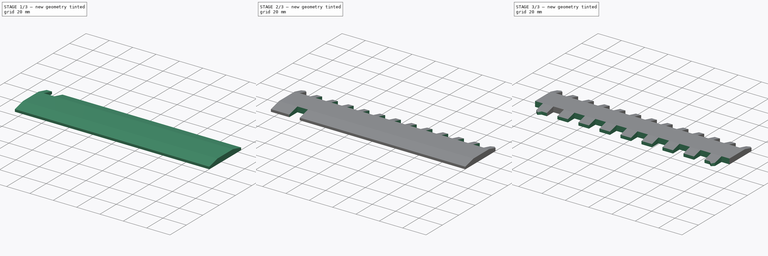
[diagram: build sequence overview — one tinted view per stage of 3, left to right]
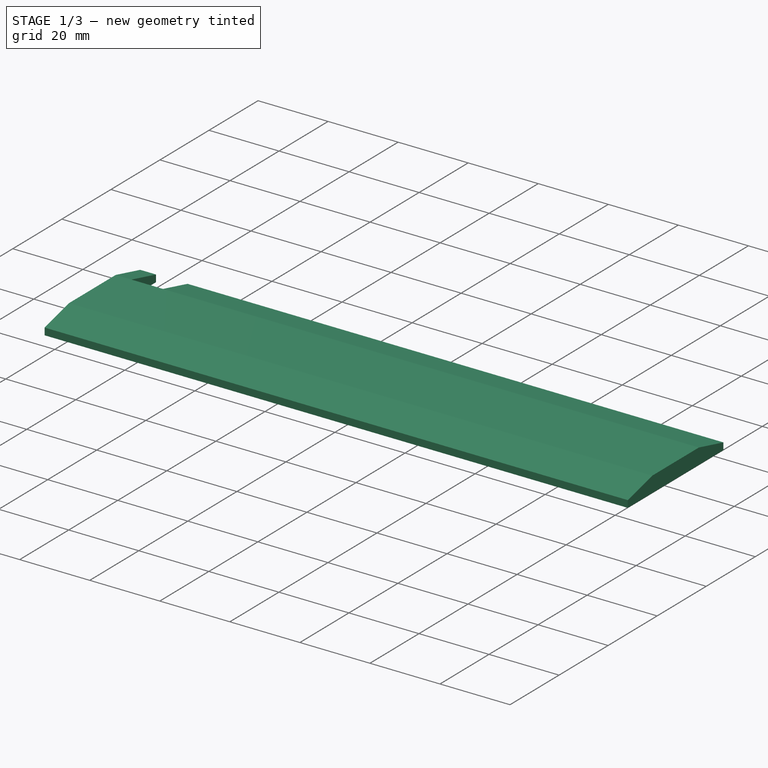
[diagram: stage 1 of 3 — iso view after this stage's code; geometry added in this stage tinted green]
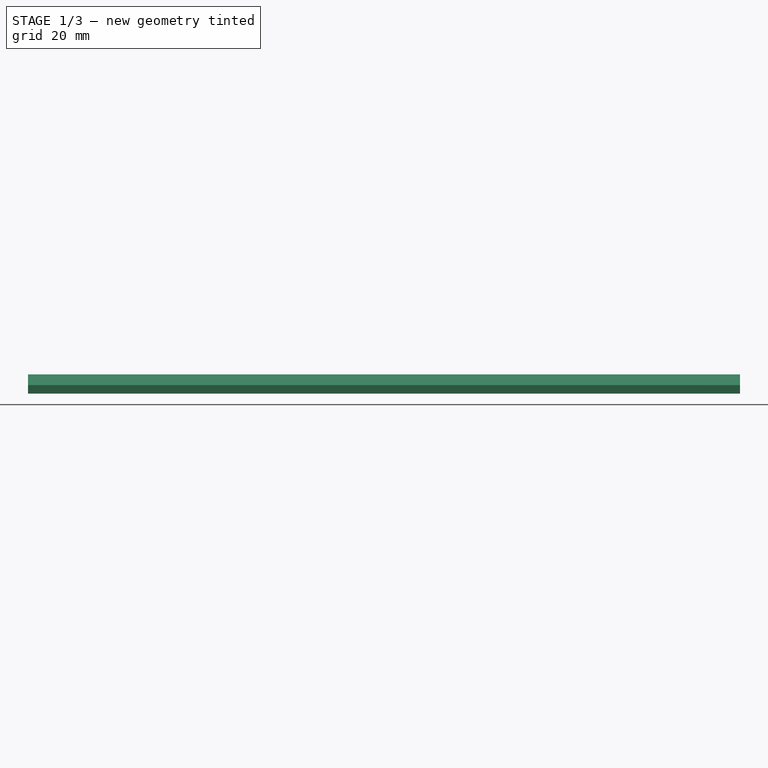
[diagram: stage 1 of 3 — front view after this stage's code; geometry added in this stage tinted green]
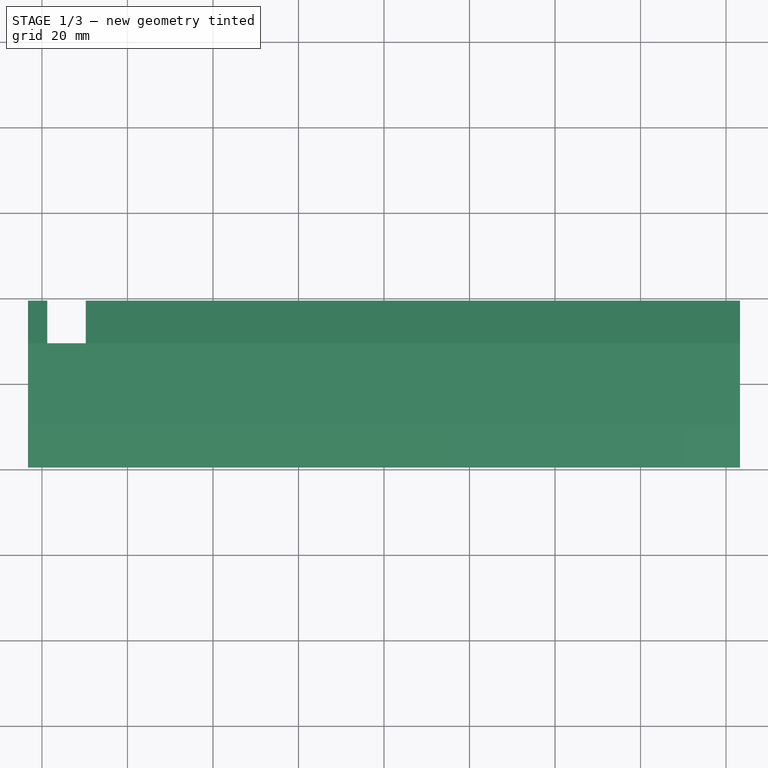
[diagram: stage 1 of 3 — top view after this stage's code; geometry added in this stage tinted green]
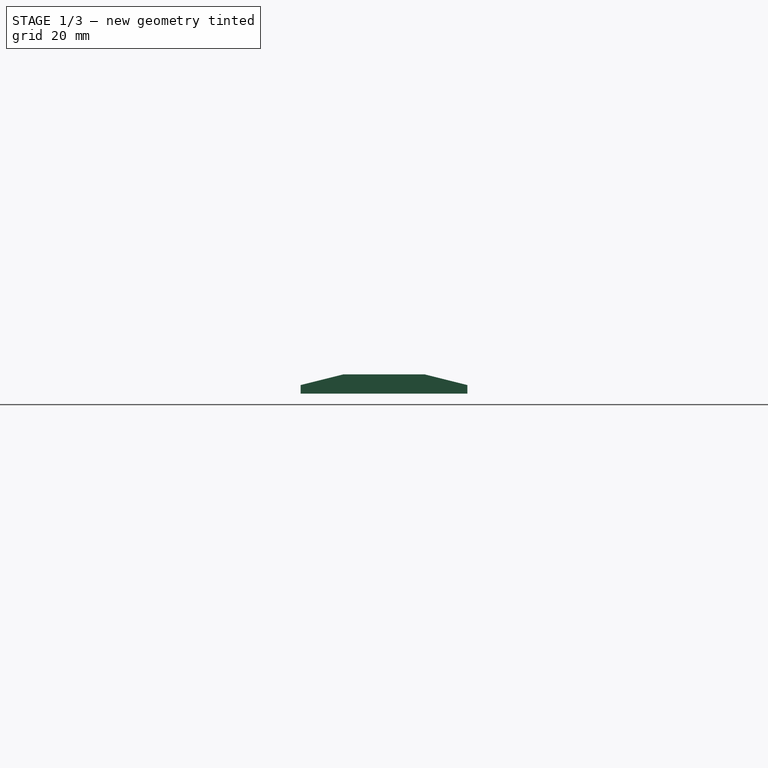
[diagram: stage 1 of 3 — right view after this stage's code; geometry added in this stage tinted green]
FCSTD DOCUMENT  (FreeCAD 0.21R33771 (Git))
Label: parametric_needle_selector
License: All rights reserved
LicenseURL: http://en.wikipedia.org/wiki/All_rights_reserved
objects: Sketcher::SketchObject×5, PartDesign::Pocket×4, PartDesign::LinearPattern×2, Spreadsheet::Sheet×1, PartDesign::Pad×1, PartDesign::Body×1, App::Part×1
note: 18 computed .brp shape members not serialized (recipe doc carries the construction recipe); baked Part::Feature solids carry a one-line shape summary decoded from their .brp

FEATURE [Sketcher::SketchObject] Sketch  label="Side Profile Sketch"
  FullyConstrained = true
  MapMode = 5
  Placement = pos=(0,0,0) rot=(0.57735,0.57735,0.57735;2.0944rad)
  Support = -> [YZ_Plane001]
  expr: Constraints[10] = <<Parameters>>.additional_board_thickness
  expr: Constraints[11] = <<Parameters>>.pin_thickness
  expr: Constraints[12] = <<Parameters>>.needle_length + <<Parameters>>.guide_point_length
  expr: Constraints[13] = <<Parameters>>.enable_bottom_row == 0 ? 0 : <<Parameters>>.needle_length + <<Parameters>>.guide_point_length
  expr: Constraints[16] = <<Parameters>>.additional_board_thickness + <<Parameters>>.pin_thickness
  expr: Constraints[1] = <<Parameters>>.pin_thickness
  expr: Constraints[7] = <<Parameters>>.additional_board_thickness
  expr: Constraints[8] = <<Parameters>>.board_width
  sketch-geometry (6):
    g0: LineSegment StartX=-19.5 StartY=-1e-16 StartZ=0 EndX=-19.5 EndY=2 EndZ=0
    g1: LineSegment StartX=-19.5 StartY=2 StartZ=0 EndX=-9.5 EndY=4.5 EndZ=0
    g2: LineSegment StartX=-9.5 StartY=4.5 StartZ=0 EndX=9.5 EndY=4.5 EndZ=0
    g3: LineSegment StartX=9.5 StartY=4.5 StartZ=0 EndX=19.5 EndY=2 EndZ=0
    g4: LineSegment StartX=19.5 StartY=2 StartZ=0 EndX=19.5 EndY=0 EndZ=0
    g5: LineSegment StartX=19.5 StartY=0 StartZ=0 EndX=-19.5 EndY=-1e-16 EndZ=0
  constraints (17):
    c: Vertical(g0)
    c: DistanceY(g0,g0) = 2
    c: Coincident(g1,g0)
    c: Coincident(g2,g1)
    c: Coincident(g3,g2)
    c: Coincident(g4,g3)
    c: Vertical(g4)
    c: DistanceY(g0,g1) = 2.5
    c: DistanceX(g2,g2) = 19
    c: Symmetric(g1,g2,g-2)
    c: DistanceY(g3,g2) = 2.5
    c: DistanceY(g4,g4) = 2
    c: DistanceX(g2,g4) = 10
    c: DistanceX(g0,g1) = 10
    c: Coincident(g5,g4)
    c: Coincident(g5,g0)
    c: DistanceY(g-1,g2) = 4.5
FEATURE [Spreadsheet::Sheet] Spreadsheet  label="Parameters"
  cells = A1='Board Parameters; D1='Automatic Calculations; A2='Needle Gauge (default 4.5mm); B2(needle_gauge)=4.5; D2='Required Board Length; E2(required_board_length)==top_required_length > bottom_required_length ? top_required_length : bottom_required_length; A3='Needle Length (default 8mm); B3(needle_length)=8; D3='Required Board Thickness; E3(required_board_thickness)==additional_board_thickness + pin_thickness; A4='Needle Arm Thickness (default 2mm); B4(pin_thickness)=2; A5='Needle Guide Point Length (default 2mm); B5(guide_point_length)=2; A6='Board Width (default 19mm); B6(board_width)=19; A7='Additional Board Thickness (default 2.5mm); B7(additional_board_thickness)=2.5; A9='Top Row Parameters; A10='Top ON Count (minimum 1); B10(top_on_count)=1; D10='Top ON Length; E10(top_on_length)==top_on_count * needle_gauge; A11='Top OFF Count (minimum 1); B11(top_off_count)=2; D11='Top OFF Length; E11(top_off_length)==top_off_count * needle_gauge; A12='Top Repetitions (minimum 1); B12(top_repetitions)=12; D12='Top OFF Array Length; E12(top_off_array_length)==(top_on_length + top_off_length) * top_repetitions - top_on_length; D13='Top Required Length; E13(top_required_length)==(top_on_length + top_off_length) * top_repetitions + top_on_length; A15='Bottom Row Parameters; A16='Enable Bottom Row (0=OFF 1=ON); B16(enable_bottom_row)=1; D16='Bottom ON Length; E16(bottom_on_length)==bottom_on_count * needle_gauge; A17='Bottom ON Count (minimum 1); B17(bottom_on_count)=2; D17='Bottom OFF Length; E17(bottom_off_length)==bottom_off_count * needle_gauge; A18='Bottom OFF Count (minimum 1); B18(bottom_off_count)=2; D18='Bottom OFF Array Length; E18(bottom_off_array_length)==(bottom_on_length + bottom_off_length) * bottom_repetitions - bottom_on_length; A19='Bottom Repetitions (minimum 1); B19(bottom_repetitions)=8; D19='Bottom Required Length; E19(bottom_required_length)==(bottom_on_length + bottom_off_length) * bottom_repetitions + bottom_on_length
FEATURE [PartDesign::Pad] Pad  label="Side Profile Pad"
  Direction = (1,-2e-16,3e-16)
  Length = 166.5
  Length2 = 10
  Midplane = true
  Placement = pos=(0,0,0) rot=(1,1,1;2.0944rad)
  Profile = -> Sketch
  ReferenceAxis = -> Sketch [N_Axis]
  Type = 0
  expr: Length = <<Parameters>>.required_board_length
FEATURE [Sketcher::SketchObject] Sketch002  label="Top OFF Sketch"
  FullyConstrained = true
  MapMode = 5
  Support = -> [XY_Plane001]
  expr: Constraints[10] = <<Parameters>>.board_width / 2
  expr: Constraints[11] = <<Parameters>>.top_off_array_length / 2
  expr: Constraints[8] = <<Parameters>>.top_off_length
  expr: Constraints[9] = <<Parameters>>.needle_length + <<Parameters>>.guide_point_length
  sketch-geometry (4):
    g0: LineSegment StartX=-78.75 StartY=19.5 StartZ=0 EndX=-69.75 EndY=19.5 EndZ=0
    g1: LineSegment StartX=-69.75 StartY=19.5 StartZ=0 EndX=-69.75 EndY=9.5 EndZ=0
    g2: LineSegment StartX=-69.75 StartY=9.5 StartZ=0 EndX=-78.75 EndY=9.5 EndZ=0
    g3: LineSegment StartX=-78.75 StartY=9.5 StartZ=0 EndX=-78.75 EndY=19.5 EndZ=0
  constraints (12):
    c: Coincident(g0,g1)
    c: Coincident(g1,g2)
    c: Coincident(g2,g3)
    c: Coincident(g3,g0)
    c: Horizontal(g0)
    c: Horizontal(g2)
    c: Vertical(g1)
    c: Vertical(g3)
    c: DistanceX(g0,g0) = 9
    c: DistanceY(g3,g3) = 10
    c: DistanceY(g-1,g1) = 9.5
    c: DistanceX(g2,g-1) = 78.75
FEATURE [PartDesign::Pocket] Pocket  label="Top OFF Pocket"
  BaseFeature = -> Pad
  Direction = (0,0,-1)
  Length = 5
  Length2 = 5
  Midplane = true
  Placement = pos=(0,0,0) rot=(1,1,1;2.0944rad)
  Profile = -> Sketch002
  ReferenceAxis = -> Sketch002 [N_Axis]
  Type = 1
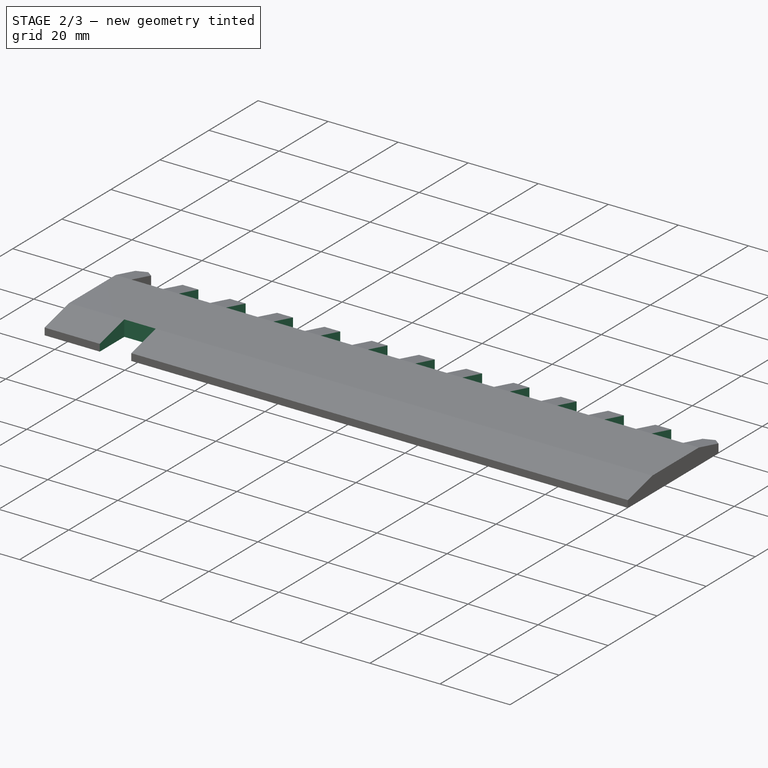
[diagram: stage 2 of 3 — iso view after this stage's code; geometry added in this stage tinted green]
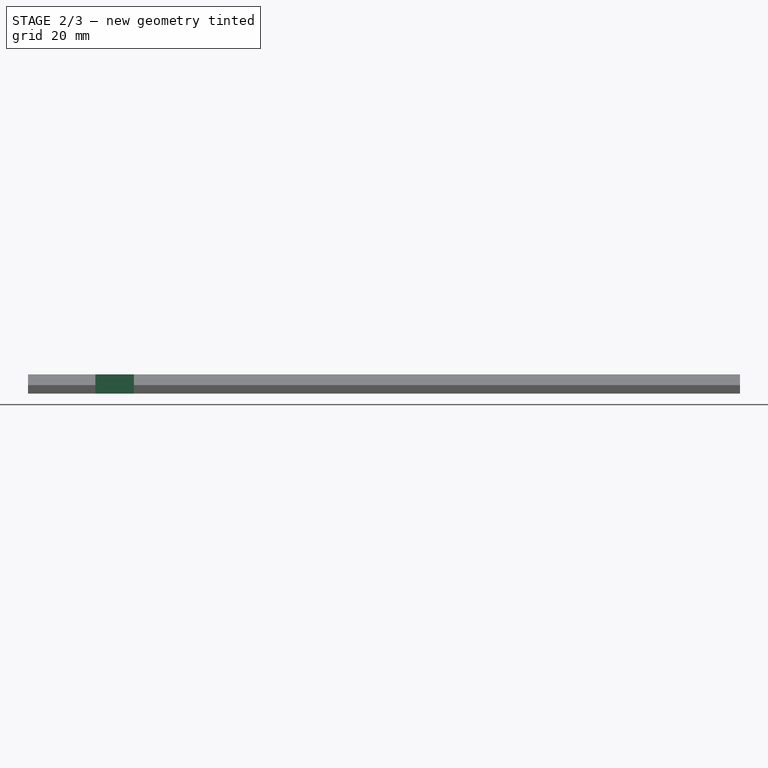
[diagram: stage 2 of 3 — front view after this stage's code; geometry added in this stage tinted green]
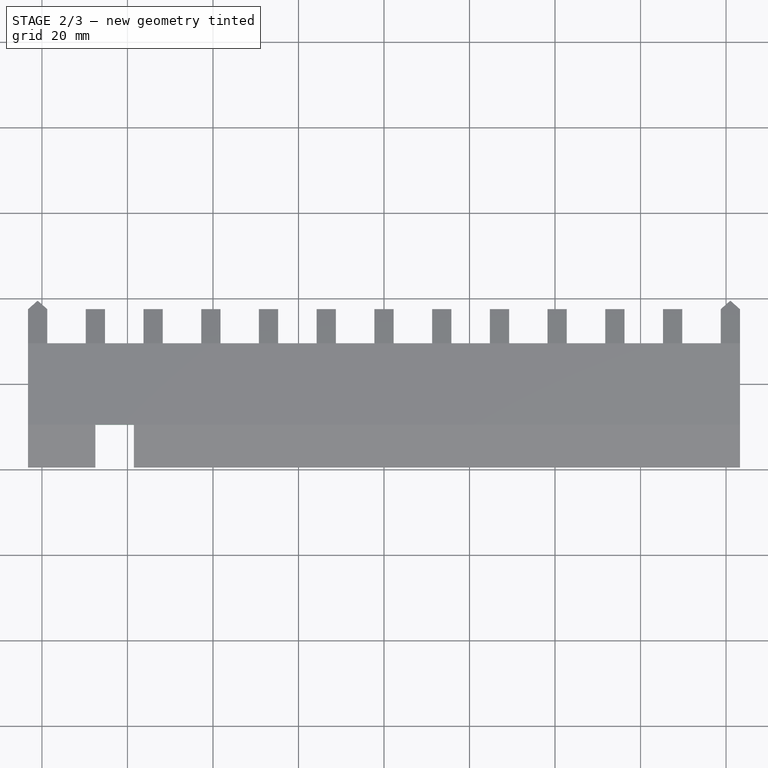
[diagram: stage 2 of 3 — top view after this stage's code; geometry added in this stage tinted green]
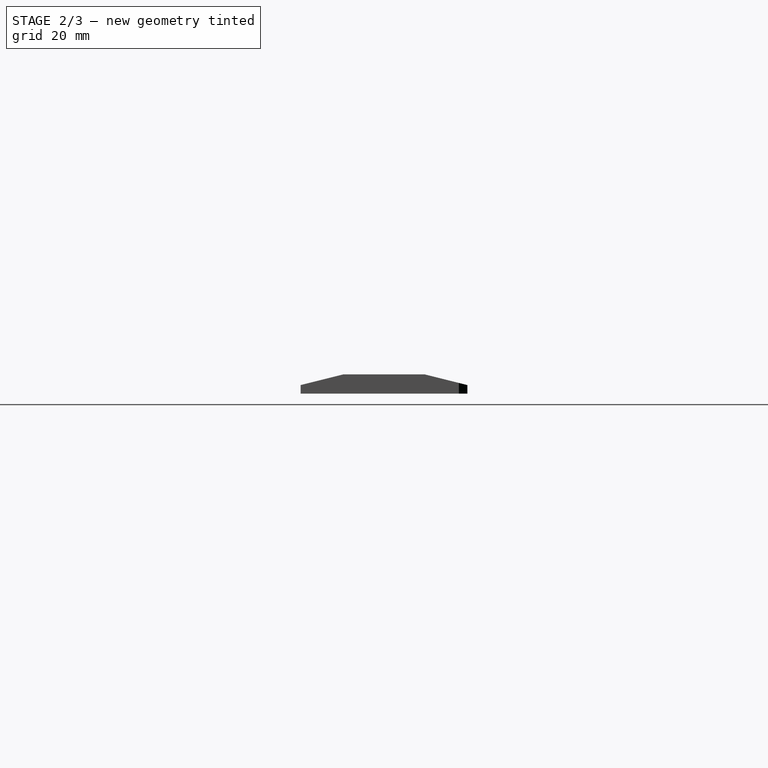
[diagram: stage 2 of 3 — right view after this stage's code; geometry added in this stage tinted green]
FEATURE [PartDesign::LinearPattern] LinearPattern  label="Top OFF LinearPattern"
  BaseFeature = -> Pocket
  Direction = -> Sketch002 [H_Axis]
  Length = 148.5
  Occurrences = 12
  Originals = -> [Pocket]
  Placement = pos=(0,0,0) rot=(1,1,1;2.0944rad)
  expr: Length = <<Parameters>>.top_off_array_length - <<Parameters>>.top_off_length
  expr: Occurrences = <<Parameters>>.top_repetitions
FEATURE [Sketcher::SketchObject] Sketch003  label="Bottom Off Sketch"
  FullyConstrained = true
  MapMode = 5
  Support = -> [XY_Plane001]
  expr: Constraints[10] = <<Parameters>>.bottom_off_array_length / 2
  expr: Constraints[11] = <<Parameters>>.bottom_off_length
  expr: Constraints[8] = <<Parameters>>.needle_length + <<Parameters>>.guide_point_length
  expr: Constraints[9] = <<Parameters>>.board_width / 2
  sketch-geometry (4):
    g0: LineSegment StartX=-67.5 StartY=-9.5 StartZ=0 EndX=-58.5 EndY=-9.5 EndZ=0
    g1: LineSegment StartX=-58.5 StartY=-9.5 StartZ=0 EndX=-58.5 EndY=-19.5 EndZ=0
    g2: LineSegment StartX=-58.5 StartY=-19.5 StartZ=0 EndX=-67.5 EndY=-19.5 EndZ=0
    g3: LineSegment StartX=-67.5 StartY=-19.5 StartZ=0 EndX=-67.5 EndY=-9.5 EndZ=0
  constraints (12):
    c: Coincident(g0,g1)
    c: Coincident(g1,g2)
    c: Coincident(g2,g3)
    c: Coincident(g3,g0)
    c: Horizontal(g0)
    c: Horizontal(g2)
    c: Vertical(g1)
    c: Vertical(g3)
    c: DistanceY(g3,g3) = 10
    c: DistanceY(g0,g-1) = 9.5
    c: DistanceX(g2,g-1) = 67.5
    c: DistanceX(g2,g1) = 9
FEATURE [Sketcher::SketchObject] Sketch004  label="Top Guide Sketch"
  FullyConstrained = true
  MapMode = 5
  Support = -> [XY_Plane001]
  expr: Constraints[11] = <<Parameters>>.needle_length + <<Parameters>>.guide_point_length
  expr: Constraints[12] = (<<Parameters>>.required_board_length - <<Parameters>>.top_off_array_length) / 2
  expr: Constraints[13] = <<Parameters>>.needle_length
  expr: Constraints[14] = <<Parameters>>.guide_point_length
  expr: Constraints[24] = <<Parameters>>.needle_gauge / 2
  expr: Constraints[25] = <<Parameters>>.needle_gauge / 2
  expr: Constraints[28] = <<Parameters>>.needle_gauge / 2
  expr: Constraints[29] = <<Parameters>>.needle_gauge / 2
  expr: Constraints[31] = (<<Parameters>>.required_board_length - <<Parameters>>.top_off_array_length) / 2
  expr: Constraints[33] = <<Parameters>>.top_on_length + <<Parameters>>.top_off_array_length / 2
  expr: Constraints[34] = <<Parameters>>.top_on_length + <<Parameters>>.top_off_array_length / 2
  expr: Constraints[35] = <<Parameters>>.board_width / 2
  sketch-geometry (12):
    g0: LineSegment StartX=-87.75 StartY=19.5 StartZ=0 EndX=-87.75 EndY=9.5 EndZ=0
    g1: LineSegment StartX=-87.75 StartY=9.5 StartZ=0 EndX=-83.25 EndY=9.5 EndZ=0
    g2: LineSegment StartX=-87.75 StartY=19.5 StartZ=0 EndX=87.75 EndY=19.5 EndZ=0
    g3: LineSegment StartX=-83.25 StartY=9.5 StartZ=0 EndX=-83.25 EndY=17.5 EndZ=0
    g4: LineSegment StartX=-83.25 StartY=17.5 StartZ=0 EndX=-81 EndY=19.5 EndZ=0
    g5: LineSegment StartX=-81 StartY=19.5 StartZ=0 EndX=-78.75 EndY=17.5 EndZ=0
    g6: LineSegment StartX=-78.75 StartY=17.5 StartZ=0 EndX=78.75 EndY=17.5 EndZ=0
    g7: LineSegment StartX=78.75 StartY=17.5 StartZ=0 EndX=81 EndY=19.5 EndZ=0
    g8: LineSegment StartX=81 StartY=19.5 StartZ=0 EndX=83.25 EndY=17.5 EndZ=0
    g9: LineSegment StartX=83.25 StartY=17.5 StartZ=0 EndX=83.25 EndY=9.5 EndZ=0
    g10: LineSegment StartX=83.25 StartY=9.5 StartZ=0 EndX=87.75 EndY=9.5 EndZ=0
    g11: LineSegment StartX=87.75 StartY=9.5 StartZ=0 EndX=87.75 EndY=19.5 EndZ=0
  constraints (36):
    c: Vertical(g0)
    c: Coincident(g1,g0)
    c: Horizontal(g1)
    c: Coincident(g2,g0)
    c: Horizontal(g2)
    c: Coincident(g3,g1)
    c: Vertical(g3)
    c: Coincident(g4,g3)
    c: Coincident(g5,g4)
    c: Coincident(g6,g5)
    c: Horizontal(g6)
    c: DistanceY(g0,g0) = 10
    c: DistanceX(g0,g3) = 4.5
    c: DistanceY(g3,g3) = 8
    c: DistanceY(g3,g4) = 2
    c: Horizontal(g3,g5)
    c: Coincident(g7,g6)
    c: Coincident(g8,g7)
    c: Coincident(g9,g8)
    c: Vertical(g9)
    c: Coincident(g10,g9)
    c: Horizontal(g10)
    c: Coincident(g11,g10)
    c: Vertical(g11)
    c: DistanceX(g3,g4) = 2.25
    c: DistanceX(g4,g5) = 2.25
    c: Horizontal(g8,g3)
    c: Horizontal(g4,g7)
    c: DistanceX(g6,g7) = 2.25
    c: DistanceX(g7,g8) = 2.25
    c: Horizontal(g1,g9)
    c: DistanceX(g8,g11) = 4.5
    c: Coincident(g2,g11)
    c: DistanceX(g1,g-1) = 83.25
    c: DistanceX(g-1,g9) = 83.25
    c: DistanceY(g-1,g0) = 9.5
FEATURE [PartDesign::Pocket] Pocket002  label="Top Guide Pocket"
  BaseFeature = -> LinearPattern
  Direction = (0,0,-1)
  Length = 5
  Length2 = 5
  Midplane = true
  Placement = pos=(0,0,0) rot=(1,1,1;2.0944rad)
  Profile = -> Sketch004
  ReferenceAxis = -> Sketch004 [N_Axis]
  Type = 1
FEATURE [PartDesign::Pocket] Pocket001  label="Bottom OFF Pocket"
  BaseFeature = -> Pocket002
  Direction = (0,0,-1)
  Length = 5
  Length2 = 5
  Midplane = true
  Placement = pos=(0,0,0) rot=(1,1,1;2.0944rad)
  Profile = -> Sketch003
  ReferenceAxis = -> Sketch003 [N_Axis]
  Type = 1
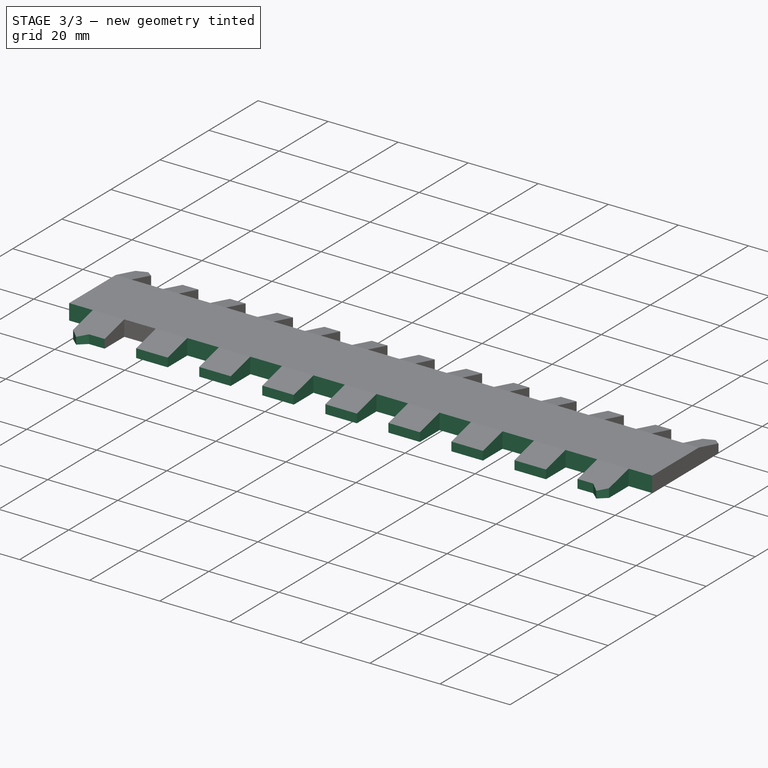
[diagram: stage 3 of 3 — iso view after this stage's code; geometry added in this stage tinted green]
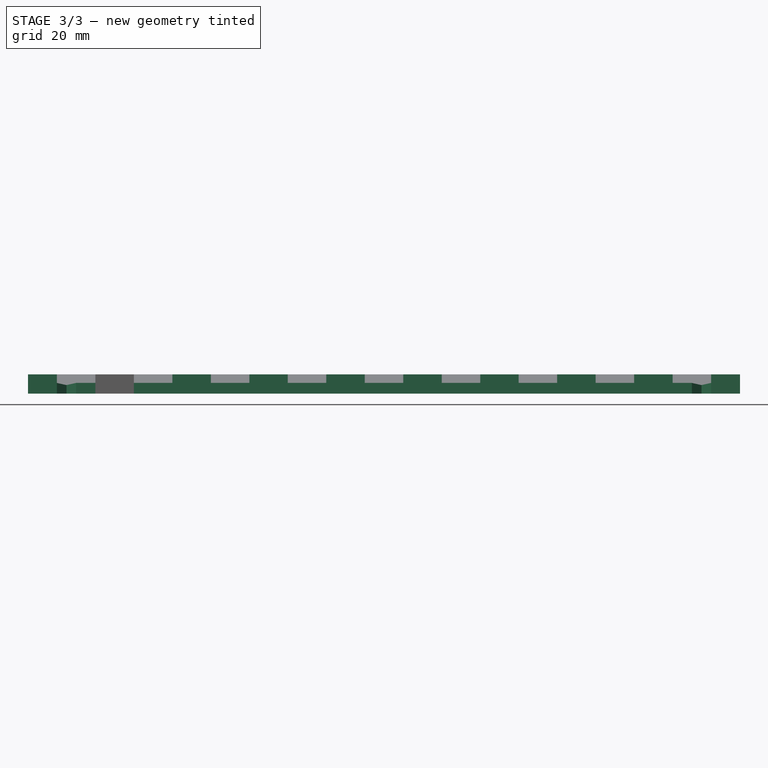
[diagram: stage 3 of 3 — front view after this stage's code; geometry added in this stage tinted green]
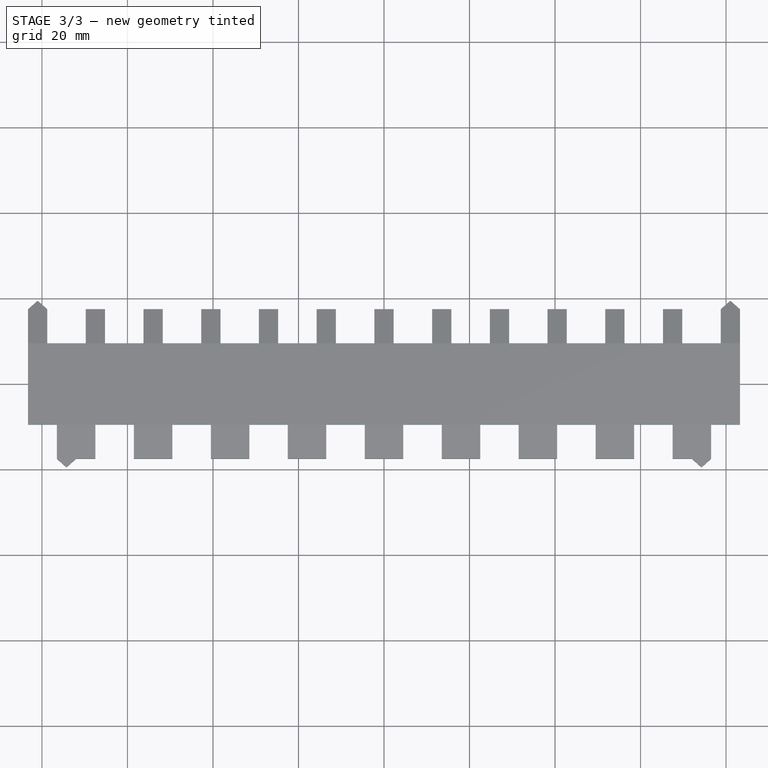
[diagram: stage 3 of 3 — top view after this stage's code; geometry added in this stage tinted green]
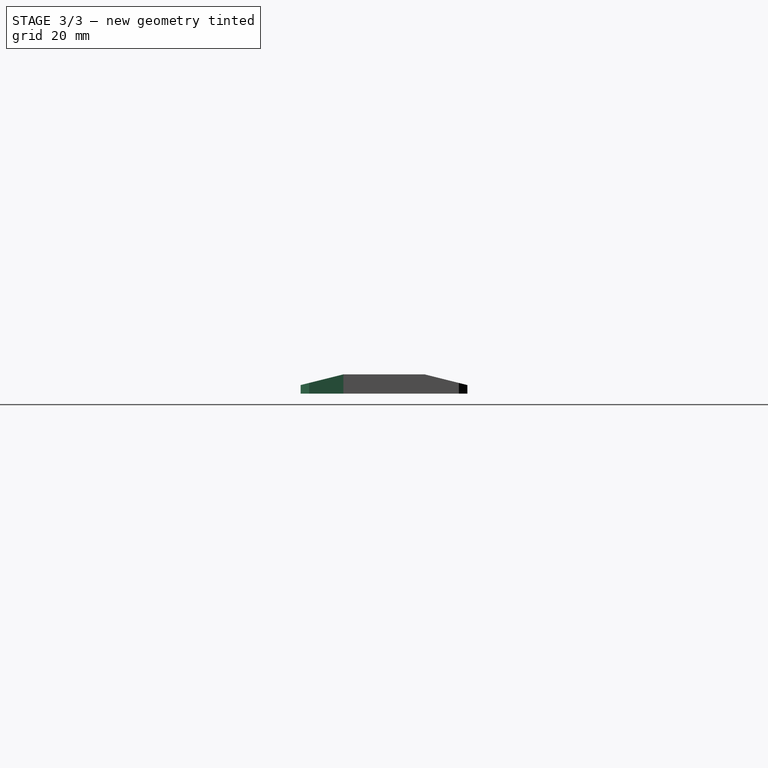
[diagram: stage 3 of 3 — right view after this stage's code; geometry added in this stage tinted green]
FEATURE [PartDesign::LinearPattern] LinearPattern001  label="Bottom OFF LinearPattern"
  BaseFeature = -> Pocket001
  Direction = -> Sketch003 [H_Axis]
  Length = 126
  Occurrences = 8
  Originals = -> [Pocket001]
  Placement = pos=(0,0,0) rot=(1,1,1;2.0944rad)
  expr: Length = <<Parameters>>.bottom_off_array_length - <<Parameters>>.bottom_off_length
  expr: Occurrences = <<Parameters>>.bottom_repetitions
FEATURE [Sketcher::SketchObject] Sketch005  label="Bottom Guide Sketch"
  FullyConstrained = true
  MapMode = 5
  Support = -> [XY_Plane001]
  expr: Constraints[16] = <<Parameters>>.needle_length + <<Parameters>>.guide_point_length
  expr: Constraints[17] = <<Parameters>>.needle_length
  expr: Constraints[21] = <<Parameters>>.guide_point_length
  expr: Constraints[26] = <<Parameters>>.needle_gauge / 2
  expr: Constraints[27] = <<Parameters>>.needle_gauge / 2
  expr: Constraints[29] = <<Parameters>>.board_width / 2
  expr: Constraints[30] = <<Parameters>>.bottom_on_length + <<Parameters>>.bottom_off_array_length / 2
  expr: Constraints[31] = (<<Parameters>>.required_board_length - <<Parameters>>.bottom_off_array_length) / 2
  expr: Constraints[32] = <<Parameters>>.needle_gauge / 2
  expr: Constraints[33] = <<Parameters>>.needle_gauge / 2
  expr: Constraints[34] = <<Parameters>>.bottom_on_length + <<Parameters>>.bottom_off_array_length / 2
  expr: Constraints[35] = (<<Parameters>>.required_board_length - <<Parameters>>.bottom_off_array_length) / 2
  sketch-geometry (12):
    g0: LineSegment StartX=-92.25 StartY=-9.5 StartZ=0 EndX=-92.25 EndY=-19.5 EndZ=0
    g1: LineSegment StartX=-92.25 StartY=-9.5 StartZ=0 EndX=-76.5 EndY=-9.5 EndZ=0
    g2: LineSegment StartX=-76.5 StartY=-9.5 StartZ=0 EndX=-76.5 EndY=-17.5 EndZ=0
    g3: LineSegment StartX=-76.5 StartY=-17.5 StartZ=0 EndX=-74.25 EndY=-19.5 EndZ=0
    g4: LineSegment StartX=-74.25 StartY=-19.5 StartZ=0 EndX=-72 EndY=-17.5 EndZ=0
    g5: LineSegment StartX=72 StartY=-17.5 StartZ=0 EndX=74.25 EndY=-19.5 EndZ=0
    g6: LineSegment StartX=74.25 StartY=-19.5 StartZ=0 EndX=76.5 EndY=-17.5 EndZ=0
    g7: LineSegment StartX=76.5 StartY=-17.5 StartZ=0 EndX=76.5 EndY=-9.5 EndZ=0
    g8: LineSegment StartX=76.5 StartY=-9.5 StartZ=0 EndX=92.25 EndY=-9.5 EndZ=0
    g9: LineSegment StartX=92.25 StartY=-9.5 StartZ=0 EndX=92.25 EndY=-19.5 EndZ=0
    g10: LineSegment StartX=92.25 StartY=-19.5 StartZ=0 EndX=-92.25 EndY=-19.5 EndZ=0
    g11: LineSegment StartX=-72 StartY=-17.5 StartZ=0 EndX=72 EndY=-17.5 EndZ=0
  constraints (36):
    c: Vertical(g0)
    c: Coincident(g1,g0)
    c: Horizontal(g1)
    c: Coincident(g2,g1)
    c: Vertical(g2)
    c: Coincident(g3,g2)
    c: Coincident(g4,g3)
    c: Coincident(g6,g5)
    c: Coincident(g7,g6)
    c: Vertical(g7)
    c: Coincident(g8,g7)
    c: Horizontal(g8)
    c: Coincident(g9,g8)
    c: Vertical(g9)
    c: Coincident(g10,g9)
    c: Horizontal(g10)
    c: DistanceY(g0,g0) = 10
    c: DistanceY(g2,g2) = 8
    c: Horizontal(g2,g4)
    c: Horizontal(g4,g5)
    c: Horizontal(g2,g6)
    c: DistanceY(g3,g2) = 2
    c: Horizontal(g3,g5)
    c: Coincident(g11,g4)
    c: Coincident(g11,g5)
    c: Horizontal(g0,g7)
    c: DistanceX(g3,g4) = 2.25
    c: DistanceX(g2,g3) = 2.25
    c: Coincident(g10,g0)
    c: DistanceY(g0,g-1) = 9.5
    c: DistanceX(g1,g-1) = 76.5
    c: DistanceX(g0,g1) = 15.75
    c: DistanceX(g5,g5) = 2.25
    c: DistanceX(g5,g6) = 2.25
    c: DistanceX(g-1,g7) = 76.5
    c: DistanceX(g7,g8) = 15.75
FEATURE [PartDesign::Pocket] Pocket003  label="Bottom Guide Pocket"
  BaseFeature = -> LinearPattern001
  Direction = (0,0,-1)
  Length = 5
  Length2 = 5
  Midplane = true
  Placement = pos=(0,0,0) rot=(1,1,1;2.0944rad)
  Profile = -> Sketch005
  ReferenceAxis = -> Sketch005 [N_Axis]
  Type = 1
FEATURE [PartDesign::Body] Body  label="Needle Selector Body"
  Group = -> [Sketch,Pad,Sketch002,Pocket,LinearPattern,Pocket002,Sketch003,Pocket001,LinearPattern001,Sketch004,Sketch005,Pocket003]
  Origin = -> Origin001
  Tip = -> Pocket003
FEATURE [App::Part] Part  label="Needle Selector Part"
  Group = -> [Body]
  Origin = -> Origin
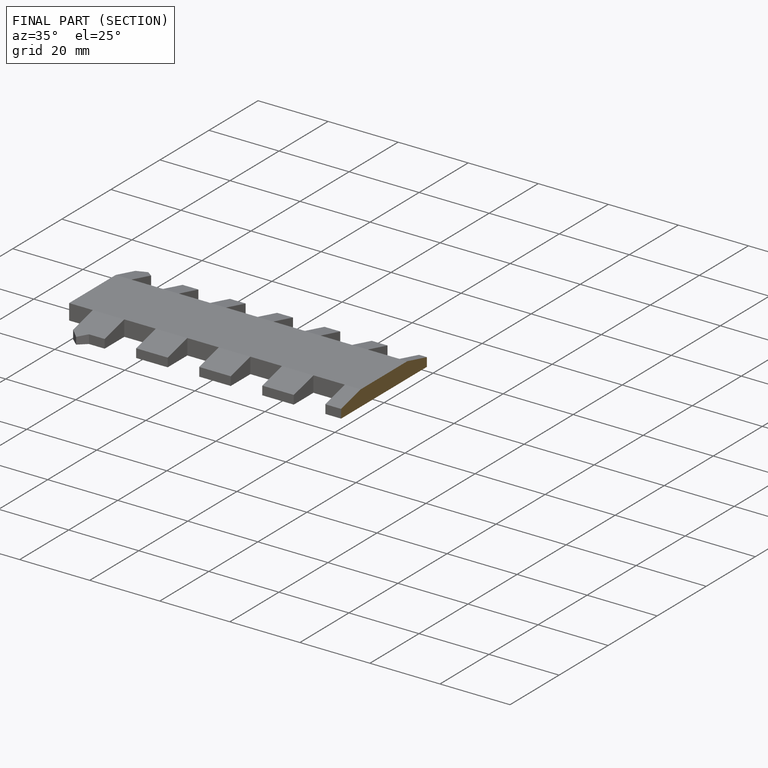
[diagram: finished part — half-section view (interior)]
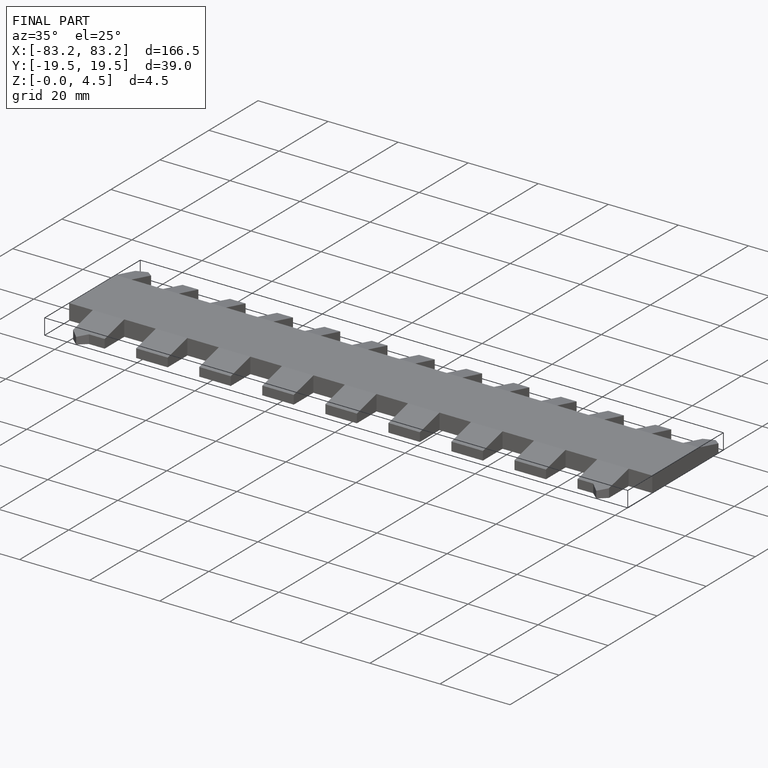
[diagram: finished part — iso view with bounding-box wireframe]
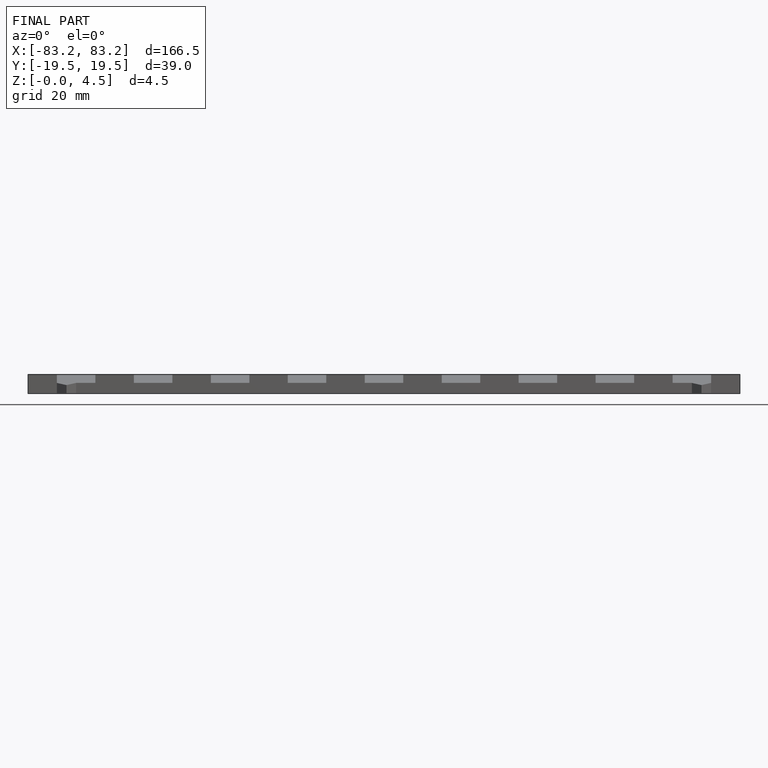
[diagram: finished part — front view with bounding-box wireframe]
